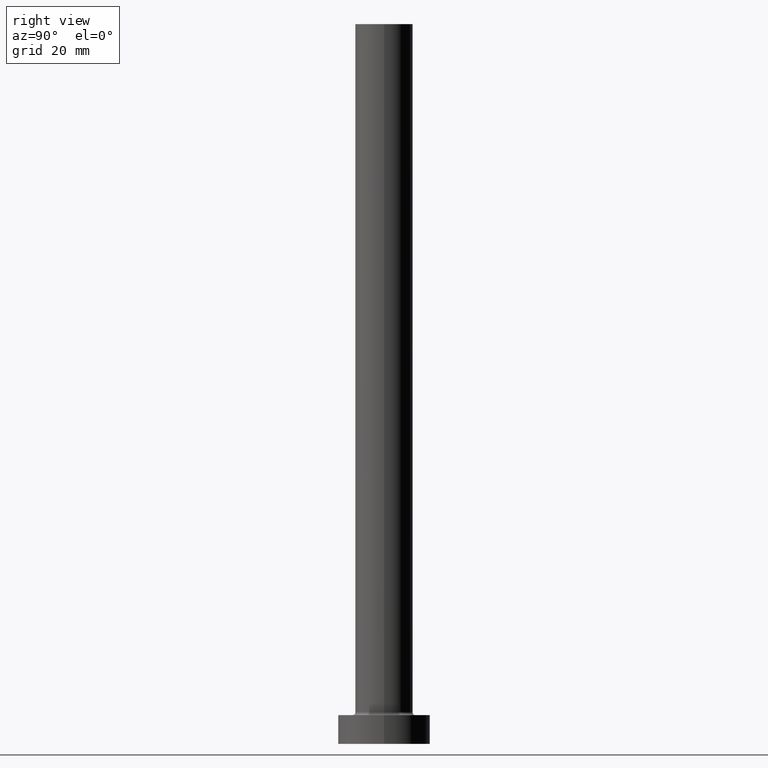
[diagram: clean part render]
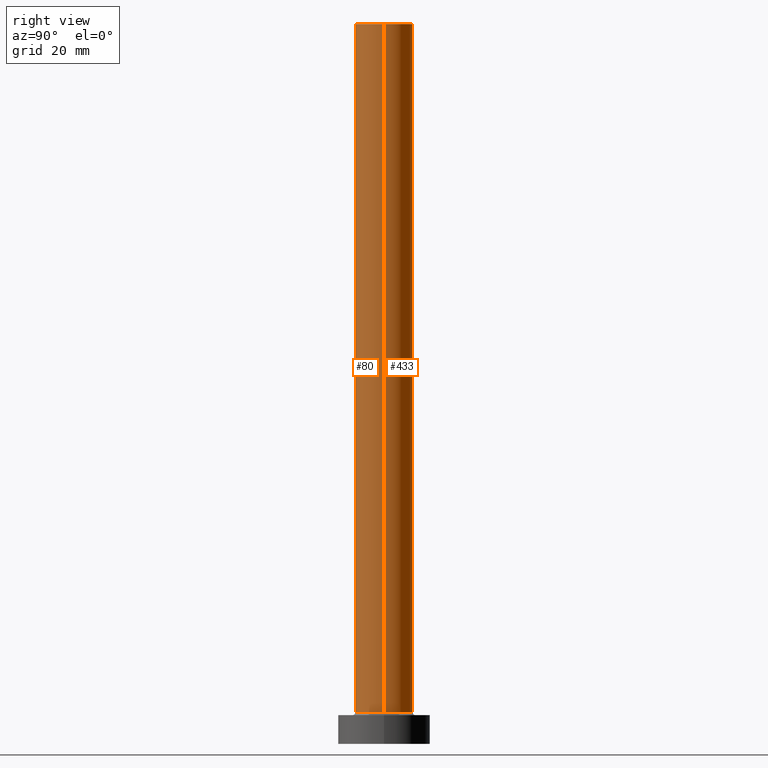
[diagram: same view with one multi-face feature highlighted, each face labeled with its STEP entity id]
A machine part, right view. The highlighted faces form ONE feature: a constant-radius fillet chain: 2 tangent blend faces with common blend radius 5 mm. The faces share edges in the B-rep.
Their STEP definitions:
[1] entity #433 (Cylinder):
#12 = CYLINDRICAL_SURFACE ( 'NONE', #319, 5.000000000000000000 ) ;
#42 = EDGE_CURVE ( 'NONE', #106, #191, #389, .T. ) ;
#43 = AXIS2_PLACEMENT_3D ( 'NONE', #353, #342, #385 ) ;
#67 = CIRCLE ( 'NONE', #302, 5.000000000000000000 ) ;
#74 = EDGE_CURVE ( 'NONE', #210, #344, #67, .T. ) ;
#85 = LINE ( 'NONE', #439, #377 ) ;
#106 = VERTEX_POINT ( 'NONE', #243 ) ;
#120 = EDGE_CURVE ( 'NONE', #106, #210, #460, .T. ) ;
#125 = DIRECTION ( 'NONE',  ( -0.000000000000000000, -0.000000000000000000, -1.000000000000000000 ) ) ;
#146 = CARTESIAN_POINT ( 'NONE',  ( 0.000000000000000000, 0.000000000000000000, 125.0000000000000000 ) ) ;
#152 = DIRECTION ( 'NONE',  ( -1.000000000000000000, 0.000000000000000000, 0.000000000000000000 ) ) ;
#177 = DIRECTION ( 'NONE',  ( -0.000000000000000000, -0.000000000000000000, -1.000000000000000000 ) ) ;
#191 = VERTEX_POINT ( 'NONE', #441 ) ;
#195 = DIRECTION ( 'NONE',  ( 1.000000000000000000, 0.000000000000000000, 0.000000000000000000 ) ) ;
#200 = CARTESIAN_POINT ( 'NONE',  ( -5.000000000000000000, 0.000000000000000000, 5.500000000000005329 ) ) ;
#210 = VERTEX_POINT ( 'NONE', #437 ) ;
#228 = ORIENTED_EDGE ( 'NONE', *, *, #42, .F. ) ;
#233 = DIRECTION ( 'NONE',  ( -0.000000000000000000, -0.000000000000000000, -1.000000000000000000 ) ) ;
#243 = CARTESIAN_POINT ( 'NONE',  ( 5.000000000000000000, 6.123233995736766282E-16, 125.0000000000000000 ) ) ;
#247 = EDGE_CURVE ( 'NONE', #191, #344, #85, .T. ) ;
#262 = FACE_OUTER_BOUND ( 'NONE', #422, .T. ) ;
#278 = DIRECTION ( 'NONE',  ( 0.000000000000000000, 0.000000000000000000, 1.000000000000000000 ) ) ;
#300 = CARTESIAN_POINT ( 'NONE',  ( 5.000000000000000000, 6.123233995736766282E-16, 125.0000000000000000 ) ) ;
#302 = AXIS2_PLACEMENT_3D ( 'NONE', #349, #278, #195 ) ;
#319 = AXIS2_PLACEMENT_3D ( 'NONE', #146, #177, #152 ) ;
#327 = VECTOR ( 'NONE', #125, 1000.000000000000000 ) ;
#338 = ORIENTED_EDGE ( 'NONE', *, *, #74, .T. ) ;
#342 = DIRECTION ( 'NONE',  ( 0.000000000000000000, 0.000000000000000000, 1.000000000000000000 ) ) ;
#344 = VERTEX_POINT ( 'NONE', #200 ) ;
#349 = CARTESIAN_POINT ( 'NONE',  ( 0.000000000000000000, 0.000000000000000000, 5.500000000000005329 ) ) ;
#353 = CARTESIAN_POINT ( 'NONE',  ( 0.000000000000000000, 0.000000000000000000, 125.0000000000000000 ) ) ;
#377 = VECTOR ( 'NONE', #233, 1000.000000000000000 ) ;
#385 = DIRECTION ( 'NONE',  ( 1.000000000000000000, 0.000000000000000000, 0.000000000000000000 ) ) ;
#389 = CIRCLE ( 'NONE', #43, 5.000000000000000000 ) ;
#403 = ORIENTED_EDGE ( 'NONE', *, *, #120, .T. ) ;
#422 = EDGE_LOOP ( 'NONE', ( #228, #403, #338, #455 ) ) ;
#433 = ADVANCED_FACE ( 'NONE', ( #262 ), #12, .T. ) ;
#437 = CARTESIAN_POINT ( 'NONE',  ( 5.000000000000000000, 6.123233995736766282E-16, 5.500000000000005329 ) ) ;
#439 = CARTESIAN_POINT ( 'NONE',  ( -5.000000000000000000, 0.000000000000000000, 125.0000000000000000 ) ) ;
#441 = CARTESIAN_POINT ( 'NONE',  ( -5.000000000000000000, 0.000000000000000000, 125.0000000000000000 ) ) ;
#455 = ORIENTED_EDGE ( 'NONE', *, *, #247, .F. ) ;
#460 = LINE ( 'NONE', #300, #327 ) ;
[2] entity #80 (Cylinder):
#4 = ORIENTED_EDGE ( 'NONE', *, *, #120, .F. ) ;
#34 = ORIENTED_EDGE ( 'NONE', *, *, #220, .F. ) ;
#58 = DIRECTION ( 'NONE',  ( -1.000000000000000000, 0.000000000000000000, 0.000000000000000000 ) ) ;
#80 = ADVANCED_FACE ( 'NONE', ( #181 ), #382, .T. ) ;
#82 = CARTESIAN_POINT ( 'NONE',  ( 0.000000000000000000, 0.000000000000000000, 125.0000000000000000 ) ) ;
#85 = LINE ( 'NONE', #439, #377 ) ;
#86 = CIRCLE ( 'NONE', #113, 5.000000000000000000 ) ;
#106 = VERTEX_POINT ( 'NONE', #243 ) ;
#113 = AXIS2_PLACEMENT_3D ( 'NONE', #82, #206, #362 ) ;
#120 = EDGE_CURVE ( 'NONE', #106, #210, #460, .T. ) ;
#125 = DIRECTION ( 'NONE',  ( -0.000000000000000000, -0.000000000000000000, -1.000000000000000000 ) ) ;
#139 = EDGE_CURVE ( 'NONE', #344, #210, #192, .T. ) ;
#140 = EDGE_LOOP ( 'NONE', ( #4, #34, #242, #279 ) ) ;
#181 = FACE_OUTER_BOUND ( 'NONE', #140, .T. ) ;
#191 = VERTEX_POINT ( 'NONE', #441 ) ;
#192 = CIRCLE ( 'NONE', #428, 5.000000000000000000 ) ;
#200 = CARTESIAN_POINT ( 'NONE',  ( -5.000000000000000000, 0.000000000000000000, 5.500000000000005329 ) ) ;
#206 = DIRECTION ( 'NONE',  ( 0.000000000000000000, 0.000000000000000000, 1.000000000000000000 ) ) ;
#210 = VERTEX_POINT ( 'NONE', #437 ) ;
#220 = EDGE_CURVE ( 'NONE', #191, #106, #86, .T. ) ;
#233 = DIRECTION ( 'NONE',  ( -0.000000000000000000, -0.000000000000000000, -1.000000000000000000 ) ) ;
#242 = ORIENTED_EDGE ( 'NONE', *, *, #247, .T. ) ;
#243 = CARTESIAN_POINT ( 'NONE',  ( 5.000000000000000000, 6.123233995736766282E-16, 125.0000000000000000 ) ) ;
#247 = EDGE_CURVE ( 'NONE', #191, #344, #85, .T. ) ;
#279 = ORIENTED_EDGE ( 'NONE', *, *, #139, .T. ) ;
#300 = CARTESIAN_POINT ( 'NONE',  ( 5.000000000000000000, 6.123233995736766282E-16, 125.0000000000000000 ) ) ;
#327 = VECTOR ( 'NONE', #125, 1000.000000000000000 ) ;
#339 = DIRECTION ( 'NONE',  ( 1.000000000000000000, 0.000000000000000000, 0.000000000000000000 ) ) ;
#344 = VERTEX_POINT ( 'NONE', #200 ) ;
#362 = DIRECTION ( 'NONE',  ( 1.000000000000000000, 0.000000000000000000, 0.000000000000000000 ) ) ;
#377 = VECTOR ( 'NONE', #233, 1000.000000000000000 ) ;
#379 = DIRECTION ( 'NONE',  ( -0.000000000000000000, -0.000000000000000000, -1.000000000000000000 ) ) ;
#382 = CYLINDRICAL_SURFACE ( 'NONE', #415, 5.000000000000000000 ) ;
#415 = AXIS2_PLACEMENT_3D ( 'NONE', #424, #379, #58 ) ;
#419 = DIRECTION ( 'NONE',  ( 0.000000000000000000, 0.000000000000000000, 1.000000000000000000 ) ) ;
#424 = CARTESIAN_POINT ( 'NONE',  ( 0.000000000000000000, 0.000000000000000000, 125.0000000000000000 ) ) ;
#428 = AXIS2_PLACEMENT_3D ( 'NONE', #436, #419, #339 ) ;
#436 = CARTESIAN_POINT ( 'NONE',  ( 0.000000000000000000, 0.000000000000000000, 5.500000000000005329 ) ) ;
#437 = CARTESIAN_POINT ( 'NONE',  ( 5.000000000000000000, 6.123233995736766282E-16, 5.500000000000005329 ) ) ;
#439 = CARTESIAN_POINT ( 'NONE',  ( -5.000000000000000000, 0.000000000000000000, 125.0000000000000000 ) ) ;
#441 = CARTESIAN_POINT ( 'NONE',  ( -5.000000000000000000, 0.000000000000000000, 125.0000000000000000 ) ) ;
#460 = LINE ( 'NONE', #300, #327 ) ;